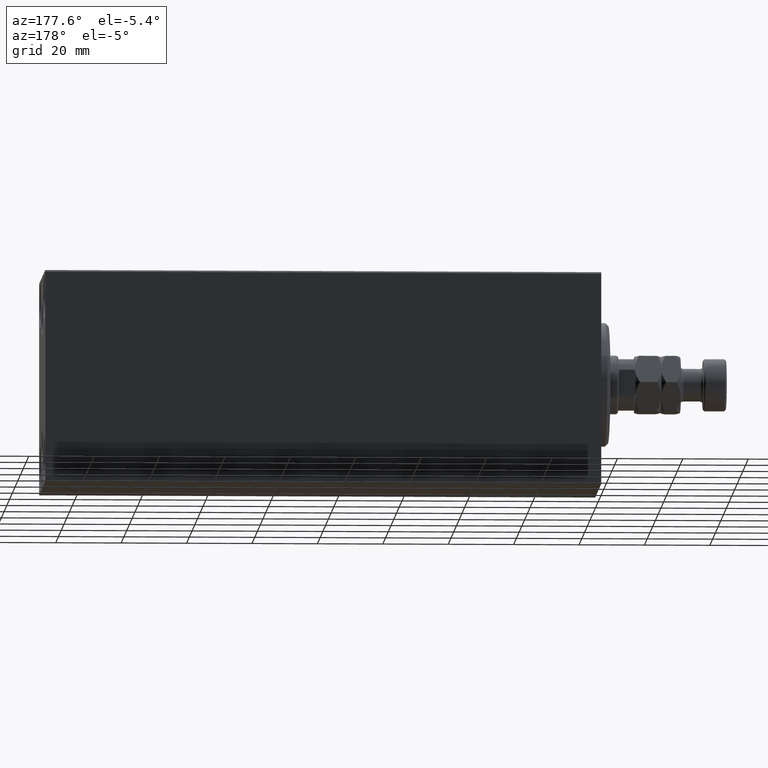
[diagram: clean part render]
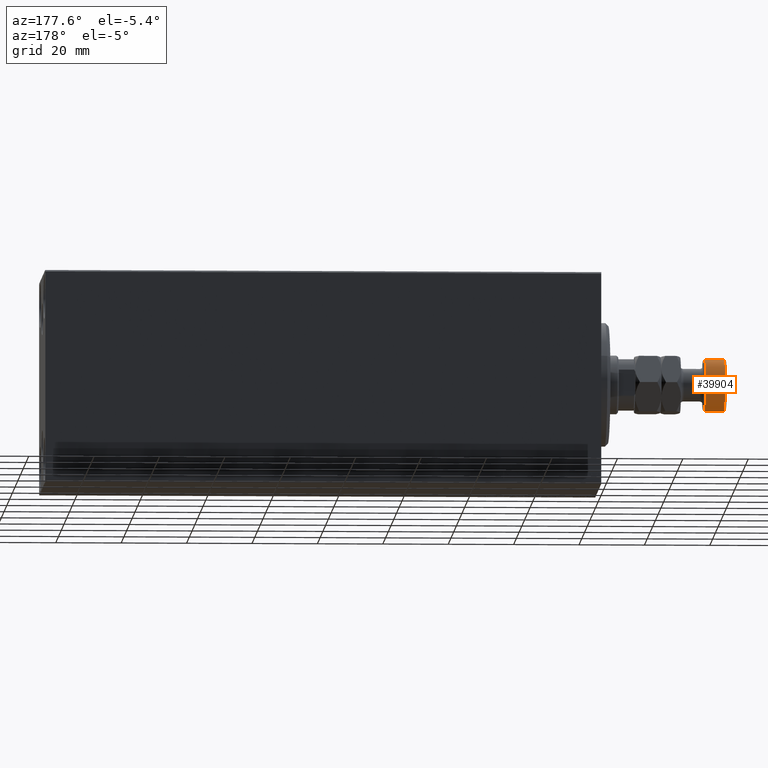
[diagram: same view with one face highlighted and labeled with its STEP entity id]
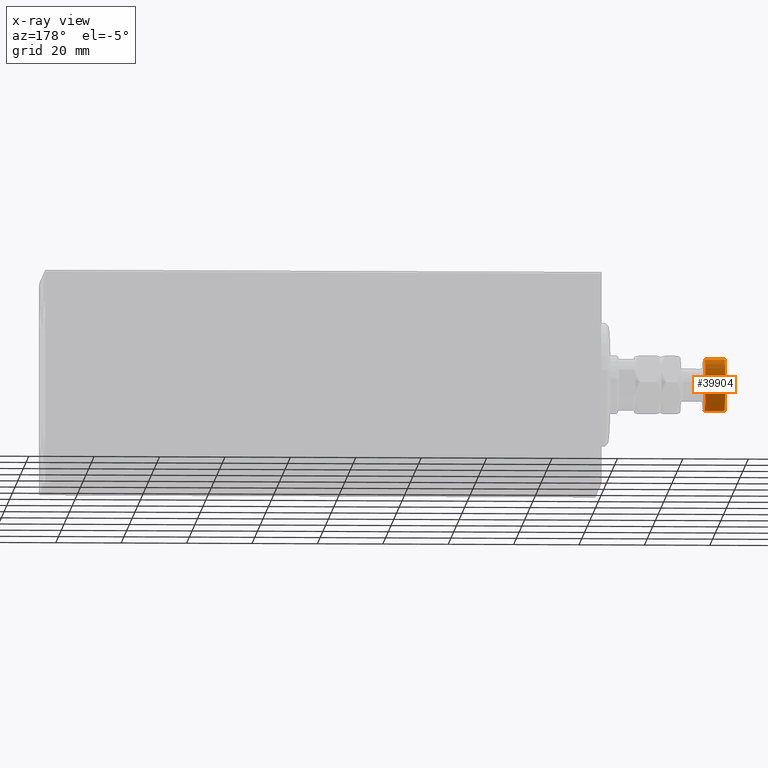
[diagram: x-ray of the same camera — body ghosted, the highlighted face saturated]
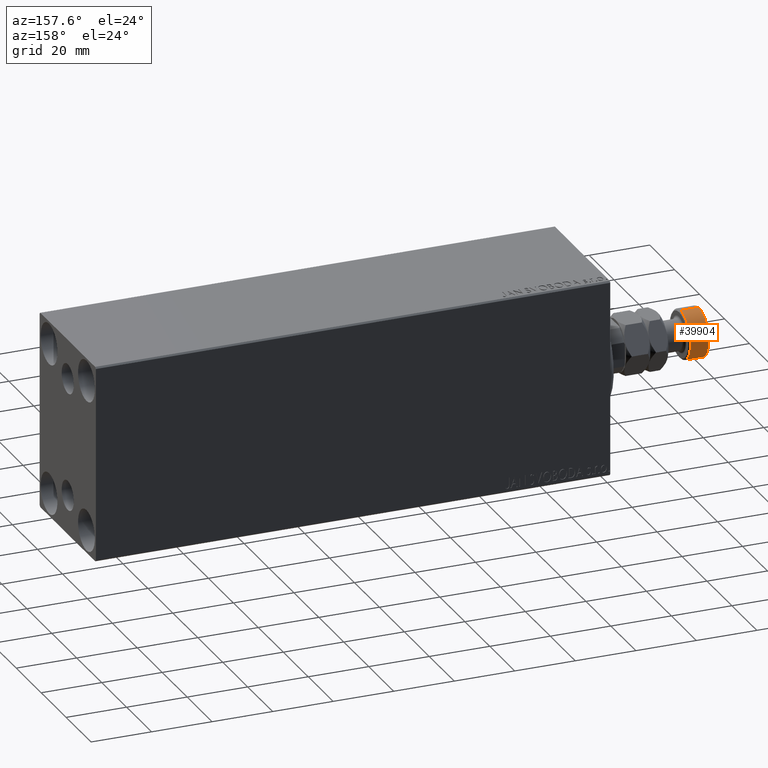
[diagram: same view with one face highlighted and labeled with its STEP entity id]
A machine part, auxiliary view. The second image highlights one B-rep face of the part: STEP entity #39904.
The next image is the same camera in x-ray: the body ghosted, the highlighted face saturated — about 0% of this face is hidden behind the body in this view.
A second angle (auxiliary view) of the same face is appended — the face is thin or edge-on in the first view.
In plain terms, the highlighted cylindrical surface (edge-blend (fillet) strip) has radius 8 mm, axis along (1, -0, -0).
Its self-contained STEP definition (entity closure, byte-faithful):
#2303 = VECTOR ( 'NONE', #33450, 1000.000000000000000 ) ;
#3714 = CARTESIAN_POINT ( 'NONE',  ( 8.000000000000000000, 9.797174393178825657E-16, 21.50000000000000711 ) ) ;
#8134 = VERTEX_POINT ( 'NONE', #41322 ) ;
#8473 = CYLINDRICAL_SURFACE ( 'NONE', #41540, 8.000000000000000000 ) ;
#10525 = CARTESIAN_POINT ( 'NONE',  ( 0.000000000000000000, 0.000000000000000000, 27.50000000000000000 ) ) ;
#11167 = EDGE_CURVE ( 'NONE', #41509, #41240, #27008, .T. ) ;
#14207 = DIRECTION ( 'NONE',  ( 0.000000000000000000, 0.000000000000000000, -1.000000000000000000 ) ) ;
#15713 = CARTESIAN_POINT ( 'NONE',  ( 8.000000000000000000, 9.797174393178825657E-16, 28.00000000000000000 ) ) ;
#16291 = CARTESIAN_POINT ( 'NONE',  ( 0.000000000000000000, 0.000000000000000000, 21.50000000000000711 ) ) ;
#17893 = ORIENTED_EDGE ( 'NONE', *, *, #18237, .T. ) ;
#18237 = EDGE_CURVE ( 'NONE', #8134, #41509, #40301, .T. ) ;
#18773 = EDGE_LOOP ( 'NONE', ( #26356, #17893, #28211, #39630 ) ) ;
#19064 = DIRECTION ( 'NONE',  ( -0.000000000000000000, -0.000000000000000000, -1.000000000000000000 ) ) ;
#19449 = LINE ( 'NONE', #30018, #2303 ) ;
#24103 = DIRECTION ( 'NONE',  ( 1.000000000000000000, 0.000000000000000000, 0.000000000000000000 ) ) ;
#25144 = CARTESIAN_POINT ( 'NONE',  ( -8.000000000000000000, 0.000000000000000000, 27.50000000000000000 ) ) ;
#26356 = ORIENTED_EDGE ( 'NONE', *, *, #31708, .T. ) ;
#27008 = CIRCLE ( 'NONE', #32143, 8.000000000000000000 ) ;
#28211 = ORIENTED_EDGE ( 'NONE', *, *, #11167, .T. ) ;
#29692 = EDGE_CURVE ( 'NONE', #30825, #41240, #19449, .T. ) ;
#29734 = DIRECTION ( 'NONE',  ( -0.000000000000000000, -0.000000000000000000, -1.000000000000000000 ) ) ;
#30018 = CARTESIAN_POINT ( 'NONE',  ( -8.000000000000000000, 0.000000000000000000, 28.00000000000000000 ) ) ;
#30825 = VERTEX_POINT ( 'NONE', #25144 ) ;
#31708 = EDGE_CURVE ( 'NONE', #30825, #8134, #38428, .T. ) ;
#32143 = AXIS2_PLACEMENT_3D ( 'NONE', #16291, #33743, #43839 ) ;
#33068 = DIRECTION ( 'NONE',  ( -1.000000000000000000, 0.000000000000000000, 0.000000000000000000 ) ) ;
#33291 = FACE_OUTER_BOUND ( 'NONE', #18773, .T. ) ;
#33450 = DIRECTION ( 'NONE',  ( -0.000000000000000000, -0.000000000000000000, -1.000000000000000000 ) ) ;
#33743 = DIRECTION ( 'NONE',  ( -0.000000000000000000, -0.000000000000000000, 1.000000000000000000 ) ) ;
#38428 = CIRCLE ( 'NONE', #42067, 8.000000000000000000 ) ;
#39354 = CARTESIAN_POINT ( 'NONE',  ( -8.000000000000000000, 0.000000000000000000, 21.50000000000000711 ) ) ;
#39630 = ORIENTED_EDGE ( 'NONE', *, *, #29692, .F. ) ;
#39904 = ADVANCED_FACE ( 'NONE', ( #33291 ), #8473, .T. ) ;
#40301 = LINE ( 'NONE', #15713, #43206 ) ;
#41240 = VERTEX_POINT ( 'NONE', #39354 ) ;
#41322 = CARTESIAN_POINT ( 'NONE',  ( 8.000000000000000000, 9.797174393178825657E-16, 27.50000000000000000 ) ) ;
#41509 = VERTEX_POINT ( 'NONE', #3714 ) ;
#41540 = AXIS2_PLACEMENT_3D ( 'NONE', #43619, #19064, #33068 ) ;
#42067 = AXIS2_PLACEMENT_3D ( 'NONE', #10525, #14207, #24103 ) ;
#43206 = VECTOR ( 'NONE', #29734, 1000.000000000000000 ) ;
#43619 = CARTESIAN_POINT ( 'NONE',  ( 0.000000000000000000, 0.000000000000000000, 28.00000000000000000 ) ) ;
#43839 = DIRECTION ( 'NONE',  ( 1.000000000000000000, 0.000000000000000000, 0.000000000000000000 ) ) ;